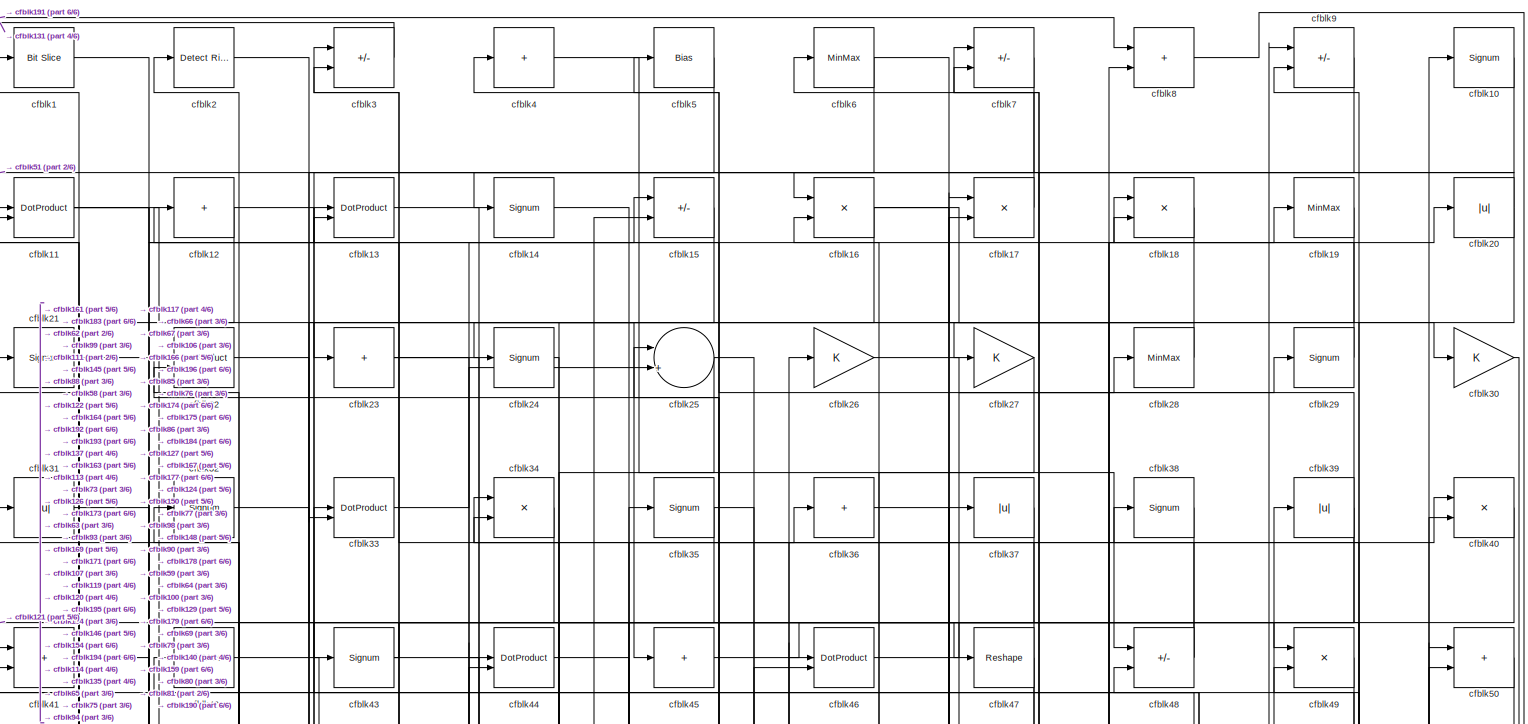
[diagram: root canvas - part 1/6, full width, top band]
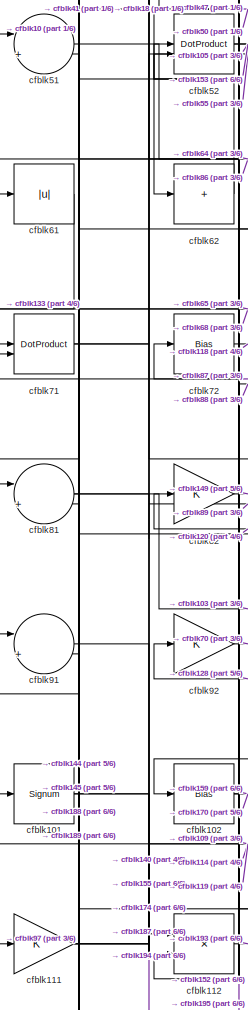
[diagram: root canvas - part 2/6, middle left region]
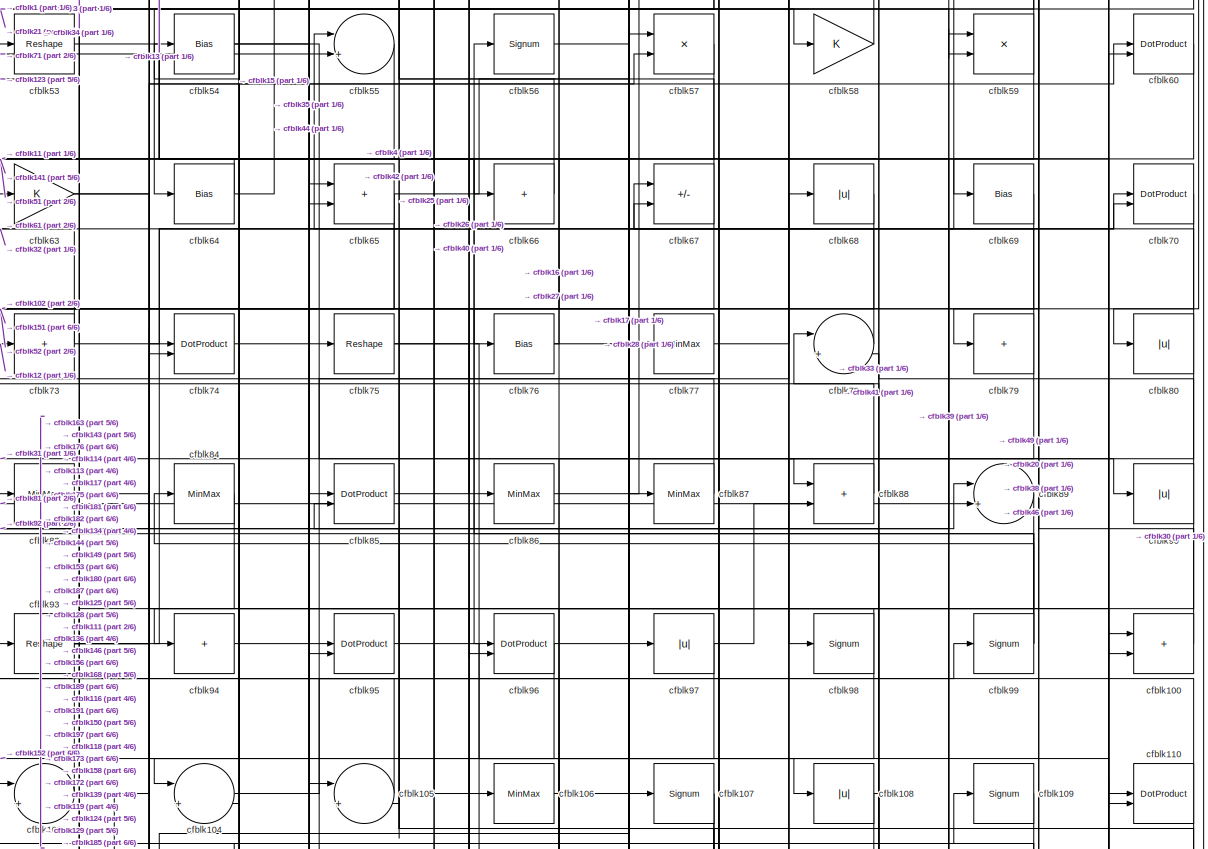
[diagram: root canvas - part 3/6, full width, middle band]
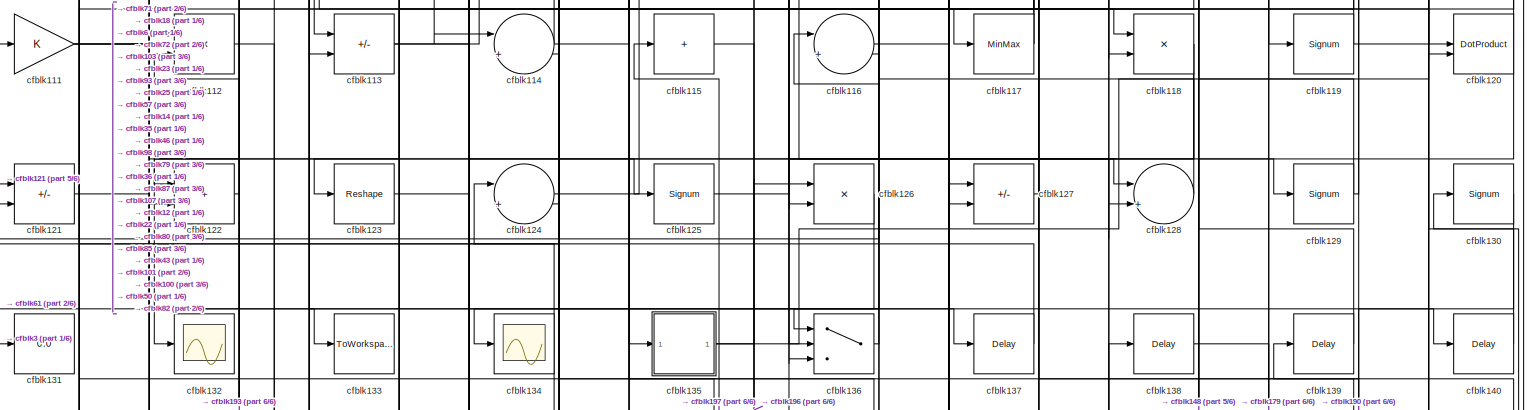
[diagram: root canvas - part 4/6, full width, middle band]
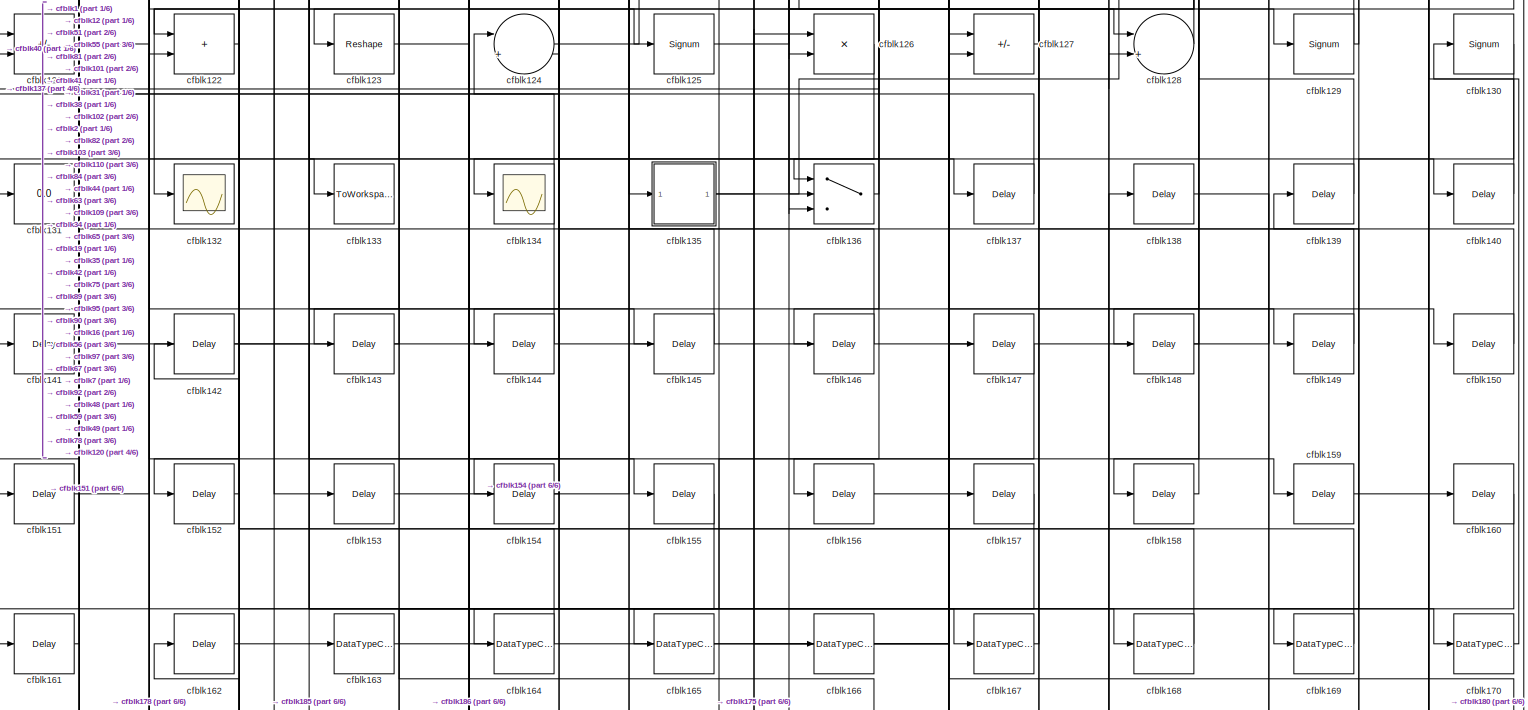
[diagram: root canvas - part 5/6, full width, bottom band]
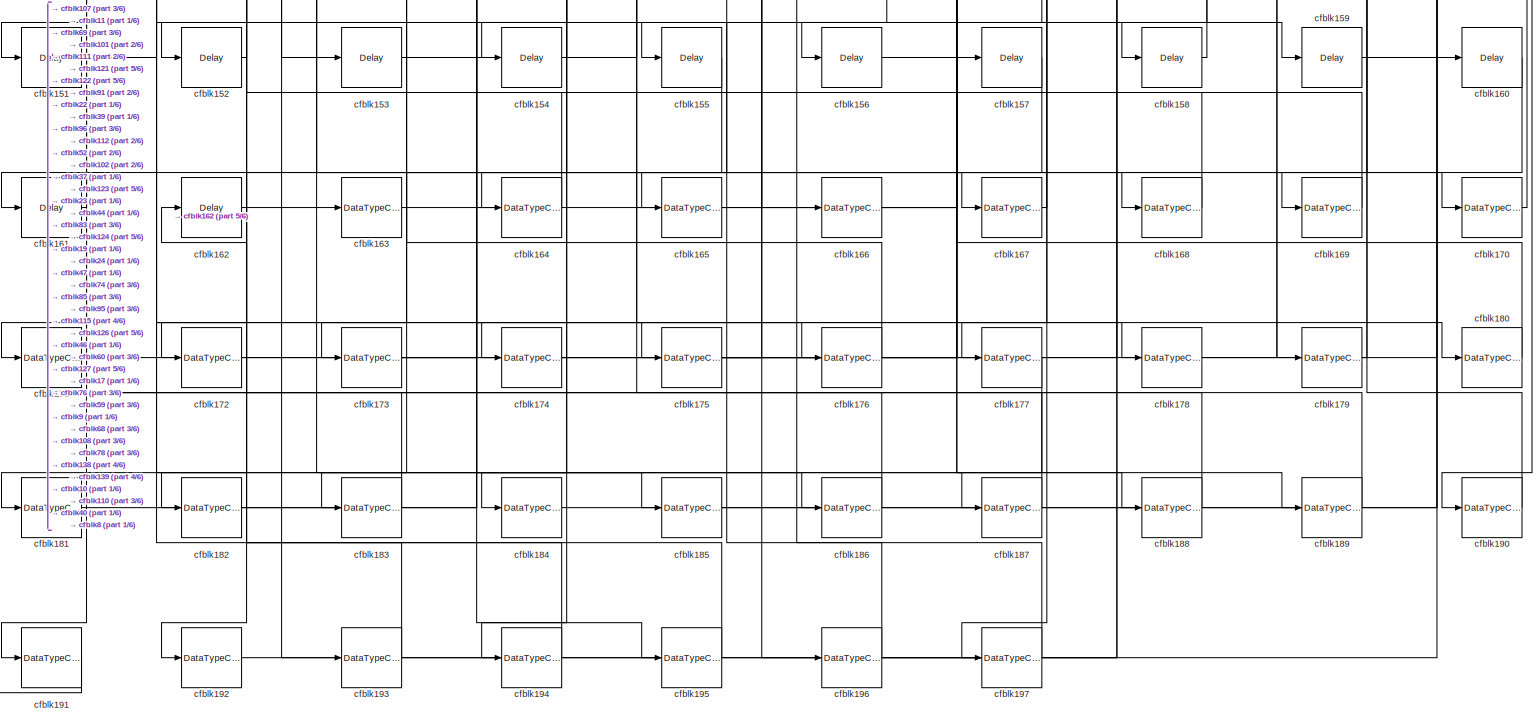
[diagram: root canvas - part 6/6, full width, bottom band]
MODEL slx_c503c598198f
KIND model
CONFIG AbsTol = auto
CONFIG EnableMultiTasking = off
CONFIG FixedStep = auto
CONFIG MaxStep = auto
CONFIG MinStep = auto
CONFIG RelTol = 1e-3
CONFIG SampleTimeConstraint = Unconstrained
CONFIG SolverName = VariableStepAuto
CONFIG StartTime = 0.0
CONFIG StopTime = 10.0
BLOCK [Reference] cfblk1  REF=hdlsllib/Logic and Bit
Operations/Bit Slice
  SourceBlock = hdlsllib/Logic and Bit\nOperations/Bit Slice
  SourceType = Bit Slice
BLOCK [Signum] cfblk10
BLOCK [Sum] cfblk100
  IconShape = rectangular
BLOCK [Signum] cfblk101
BLOCK [Bias] cfblk102
  Bias = 0.0
  SaturateOnIntegerOverflow = off
BLOCK [Sum] cfblk103
  Inputs = |++
BLOCK [Sum] cfblk104
  Inputs = |++
BLOCK [Sum] cfblk105
  Inputs = |++
BLOCK [MinMax] cfblk106
BLOCK [Signum] cfblk107
BLOCK [Abs] cfblk108
  SaturateOnIntegerOverflow = off
BLOCK [Signum] cfblk109
BLOCK [DotProduct] cfblk11
  OutDataTypeStr = Inherit: Inherit via internal rule
BLOCK [DotProduct] cfblk110
  OutDataTypeStr = Inherit: Inherit via internal rule
BLOCK [Gain] cfblk111
BLOCK [Product] cfblk112
  Inputs = */
  RndMeth = Zero
  SaturateOnIntegerOverflow = on
BLOCK [Sum] cfblk113
  IconShape = rectangular
  Inputs = +-
BLOCK [Sum] cfblk114
  Inputs = |++
BLOCK [Sum] cfblk115
  IconShape = rectangular
  Inputs = +
BLOCK [Sum] cfblk116
  Inputs = |++
BLOCK [MinMax] cfblk117
BLOCK [Product] cfblk118
  Inputs = */
  RndMeth = Zero
  SaturateOnIntegerOverflow = on
BLOCK [Signum] cfblk119
BLOCK [Sum] cfblk12
  IconShape = rectangular
  Inputs = +
BLOCK [DotProduct] cfblk120
  OutDataTypeStr = Inherit: Inherit via internal rule
BLOCK [Sum] cfblk121
  IconShape = rectangular
  Inputs = +-
BLOCK [Sum] cfblk122
  IconShape = rectangular
BLOCK [Reshape] cfblk123
BLOCK [Sum] cfblk124
  Inputs = |++
BLOCK [Signum] cfblk125
BLOCK [Product] cfblk126
  Inputs = */
  RndMeth = Zero
  SaturateOnIntegerOverflow = on
BLOCK [Sum] cfblk127
  IconShape = rectangular
  Inputs = +-
BLOCK [Sum] cfblk128
  Inputs = |++
BLOCK [Signum] cfblk129
BLOCK [DotProduct] cfblk13
  OutDataTypeStr = Inherit: Inherit via internal rule
BLOCK [Signum] cfblk130
BLOCK [Display] cfblk131
  Decimation = 1
BLOCK [Scope] cfblk132
  Floating = off
  NumInputPorts = 1
  ScopeSpecificationString = Simulink.scopes.TimeScopeBlockCfg('CurrentConfiguration', extmgr.ConfigurationSet(extmgr.Configuration('Core','General UI',true),extmgr.Configuration('Core','Source UI',true),extmgr.Configuration('Sources','WiredSimulink',true,'DataLoggingVariableName','ScopeData2','DataLoggingSaveFormat','Array','DataLoggingLimitDataPoints',true,'DataLoggingDecimation','1'),extmgr.Configuration('Visuals','Time Do...<+868ch>
BLOCK [ToWorkspace] cfblk133
  MaxDataPoints = inf
  SampleTime = -1
  SaveFormat = Timeseries
  VariableName = simout
BLOCK [Scope] cfblk134
  Floating = off
  NumInputPorts = 1
  ScopeSpecificationString = Simulink.scopes.TimeScopeBlockCfg('CurrentConfiguration', extmgr.ConfigurationSet(extmgr.Configuration('Core','General UI',true),extmgr.Configuration('Core','Source UI',true),extmgr.Configuration('Sources','WiredSimulink',true,'DataLoggingVariableName','ScopeData2','DataLoggingSaveFormat','Array','DataLoggingLimitDataPoints',true,'DataLoggingDecimation','1'),extmgr.Configuration('Visuals','Time Do...<+868ch>
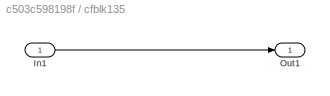
BLOCK [SubSystem] cfblk135
  LibrarySourceBlock = hdlsllib/Ports &\nSubsystems/Subsystem
BLOCK [Inport] cfblk135/In1
BLOCK [Outport] cfblk135/Out1
BLOCK [Switch] cfblk136
  InputSameDT = off
  SaturateOnIntegerOverflow = off
BLOCK [Delay] cfblk137
  InputPortMap = u0
  SampleTime = 1
BLOCK [Delay] cfblk138
  InputPortMap = u0
  SampleTime = 1
BLOCK [Delay] cfblk139
  InputPortMap = u0
  SampleTime = 1
BLOCK [Signum] cfblk14
BLOCK [Delay] cfblk140
  InputPortMap = u0
  SampleTime = 1
BLOCK [Delay] cfblk141
  InputPortMap = u0
  SampleTime = 1
BLOCK [Delay] cfblk142
  InputPortMap = u0
  SampleTime = 1
BLOCK [Delay] cfblk143
  InputPortMap = u0
  SampleTime = 1
BLOCK [Delay] cfblk144
  InputPortMap = u0
  SampleTime = 1
BLOCK [Delay] cfblk145
  InputPortMap = u0
  SampleTime = 1
BLOCK [Delay] cfblk146
  InputPortMap = u0
  SampleTime = 1
BLOCK [Delay] cfblk147
  InputPortMap = u0
  SampleTime = 1
BLOCK [Delay] cfblk148
  InputPortMap = u0
  SampleTime = 1
BLOCK [Delay] cfblk149
  InputPortMap = u0
  SampleTime = 1
BLOCK [Sum] cfblk15
  IconShape = rectangular
  Inputs = +-
BLOCK [Delay] cfblk150
  InputPortMap = u0
  SampleTime = 1
BLOCK [Delay] cfblk151
  InputPortMap = u0
  SampleTime = 1
BLOCK [Delay] cfblk152
  InputPortMap = u0
  SampleTime = 1
BLOCK [Delay] cfblk153
  InputPortMap = u0
  SampleTime = 1
BLOCK [Delay] cfblk154
  InputPortMap = u0
  SampleTime = 1
BLOCK [Delay] cfblk155
  InputPortMap = u0
  SampleTime = 1
BLOCK [Delay] cfblk156
  InputPortMap = u0
  SampleTime = 1
BLOCK [Delay] cfblk157
  InputPortMap = u0
  SampleTime = 1
BLOCK [Delay] cfblk158
  InputPortMap = u0
  SampleTime = 1
BLOCK [Delay] cfblk159
  InputPortMap = u0
  SampleTime = 1
BLOCK [Product] cfblk16
  Inputs = */
  RndMeth = Zero
  SaturateOnIntegerOverflow = on
BLOCK [Delay] cfblk160
  InputPortMap = u0
  SampleTime = 1
BLOCK [Delay] cfblk161
  InputPortMap = u0
  SampleTime = 1
BLOCK [Delay] cfblk162
  InputPortMap = u0
  SampleTime = 1
BLOCK [DataTypeConversion] cfblk163
  OutDataTypeStr = uint8
  RndMeth = Floor
  SaturateOnIntegerOverflow = off
BLOCK [DataTypeConversion] cfblk164
  OutDataTypeStr = uint8
  RndMeth = Floor
  SaturateOnIntegerOverflow = off
BLOCK [DataTypeConversion] cfblk165
  OutDataTypeStr = uint8
  RndMeth = Floor
  SaturateOnIntegerOverflow = off
BLOCK [DataTypeConversion] cfblk166
  OutDataTypeStr = uint8
  RndMeth = Floor
  SaturateOnIntegerOverflow = off
BLOCK [DataTypeConversion] cfblk167
  OutDataTypeStr = uint8
  RndMeth = Floor
  SaturateOnIntegerOverflow = off
BLOCK [DataTypeConversion] cfblk168
  OutDataTypeStr = uint8
  RndMeth = Floor
  SaturateOnIntegerOverflow = off
BLOCK [DataTypeConversion] cfblk169
  OutDataTypeStr = uint8
  RndMeth = Floor
  SaturateOnIntegerOverflow = off
BLOCK [Product] cfblk17
  Inputs = */
  RndMeth = Zero
  SaturateOnIntegerOverflow = on
BLOCK [DataTypeConversion] cfblk170
  OutDataTypeStr = uint8
  RndMeth = Floor
  SaturateOnIntegerOverflow = off
BLOCK [DataTypeConversion] cfblk171
  OutDataTypeStr = uint8
  RndMeth = Floor
  SaturateOnIntegerOverflow = off
BLOCK [DataTypeConversion] cfblk172
  OutDataTypeStr = uint8
  RndMeth = Floor
  SaturateOnIntegerOverflow = off
BLOCK [DataTypeConversion] cfblk173
  RndMeth = Floor
  SaturateOnIntegerOverflow = off
BLOCK [DataTypeConversion] cfblk174
  OutDataTypeStr = uint8
  RndMeth = Floor
  SaturateOnIntegerOverflow = off
BLOCK [DataTypeConversion] cfblk175
  RndMeth = Floor
  SaturateOnIntegerOverflow = off
BLOCK [DataTypeConversion] cfblk176
  OutDataTypeStr = uint8
  RndMeth = Floor
  SaturateOnIntegerOverflow = off
BLOCK [DataTypeConversion] cfblk177
  OutDataTypeStr = uint8
  RndMeth = Floor
  SaturateOnIntegerOverflow = off
BLOCK [DataTypeConversion] cfblk178
  OutDataTypeStr = uint8
  RndMeth = Floor
  SaturateOnIntegerOverflow = off
BLOCK [DataTypeConversion] cfblk179
  OutDataTypeStr = uint8
  RndMeth = Floor
  SaturateOnIntegerOverflow = off
BLOCK [Product] cfblk18
  Inputs = */
  RndMeth = Zero
  SaturateOnIntegerOverflow = on
BLOCK [DataTypeConversion] cfblk180
  OutDataTypeStr = uint8
  RndMeth = Floor
  SaturateOnIntegerOverflow = off
BLOCK [DataTypeConversion] cfblk181
  OutDataTypeStr = uint8
  RndMeth = Floor
  SaturateOnIntegerOverflow = off
BLOCK [DataTypeConversion] cfblk182
  OutDataTypeStr = uint8
  RndMeth = Floor
  SaturateOnIntegerOverflow = off
BLOCK [DataTypeConversion] cfblk183
  OutDataTypeStr = uint8
  RndMeth = Floor
  SaturateOnIntegerOverflow = off
BLOCK [DataTypeConversion] cfblk184
  OutDataTypeStr = uint8
  RndMeth = Floor
  SaturateOnIntegerOverflow = off
BLOCK [DataTypeConversion] cfblk185
  OutDataTypeStr = uint8
  RndMeth = Floor
  SaturateOnIntegerOverflow = off
BLOCK [DataTypeConversion] cfblk186
  OutDataTypeStr = uint8
  RndMeth = Floor
  SaturateOnIntegerOverflow = off
BLOCK [DataTypeConversion] cfblk187
  OutDataTypeStr = uint8
  RndMeth = Floor
  SaturateOnIntegerOverflow = off
BLOCK [DataTypeConversion] cfblk188
  OutDataTypeStr = uint8
  RndMeth = Floor
  SaturateOnIntegerOverflow = off
BLOCK [DataTypeConversion] cfblk189
  OutDataTypeStr = uint8
  RndMeth = Floor
  SaturateOnIntegerOverflow = off
BLOCK [MinMax] cfblk19
BLOCK [DataTypeConversion] cfblk190
  OutDataTypeStr = uint8
  RndMeth = Floor
  SaturateOnIntegerOverflow = off
BLOCK [DataTypeConversion] cfblk191
  OutDataTypeStr = uint8
  RndMeth = Floor
  SaturateOnIntegerOverflow = off
BLOCK [DataTypeConversion] cfblk192
  OutDataTypeStr = uint8
  RndMeth = Floor
  SaturateOnIntegerOverflow = off
BLOCK [DataTypeConversion] cfblk193
  RndMeth = Floor
  SaturateOnIntegerOverflow = off
BLOCK [DataTypeConversion] cfblk194
  OutDataTypeStr = uint8
  RndMeth = Floor
  SaturateOnIntegerOverflow = off
BLOCK [DataTypeConversion] cfblk195
  OutDataTypeStr = uint8
  RndMeth = Floor
  SaturateOnIntegerOverflow = off
BLOCK [DataTypeConversion] cfblk196
  RndMeth = Floor
  SaturateOnIntegerOverflow = off
BLOCK [DataTypeConversion] cfblk197
  OutDataTypeStr = uint8
  RndMeth = Floor
  SaturateOnIntegerOverflow = off
BLOCK [Reference] cfblk2  REF=hdlsllib/Logic and Bit
Operations/Detect Rise
Positive
  SourceBlock = hdlsllib/Logic and Bit\nOperations/Detect Rise\nPositive
  SourceType = Detect Rise Positive
BLOCK [Abs] cfblk20
  SaturateOnIntegerOverflow = off
BLOCK [Signum] cfblk21
BLOCK [DotProduct] cfblk22
  OutDataTypeStr = Inherit: Inherit via internal rule
BLOCK [Sum] cfblk23
  IconShape = rectangular
  Inputs = +
BLOCK [Signum] cfblk24
BLOCK [Sum] cfblk25
  Inputs = |++
BLOCK [Gain] cfblk26
BLOCK [Gain] cfblk27
BLOCK [MinMax] cfblk28
BLOCK [Signum] cfblk29
BLOCK [Sum] cfblk3
  IconShape = rectangular
  Inputs = +-
BLOCK [Gain] cfblk30
BLOCK [Abs] cfblk31
  SaturateOnIntegerOverflow = off
BLOCK [Signum] cfblk32
BLOCK [DotProduct] cfblk33
  OutDataTypeStr = Inherit: Inherit via internal rule
BLOCK [Product] cfblk34
  Inputs = */
  RndMeth = Zero
  SaturateOnIntegerOverflow = on
BLOCK [Signum] cfblk35
BLOCK [Sum] cfblk36
  IconShape = rectangular
  Inputs = +
BLOCK [Abs] cfblk37
  SaturateOnIntegerOverflow = off
BLOCK [Signum] cfblk38
BLOCK [Abs] cfblk39
  SaturateOnIntegerOverflow = off
BLOCK [Sum] cfblk4
  IconShape = rectangular
  Inputs = +
BLOCK [Product] cfblk40
  Inputs = */
  RndMeth = Zero
  SaturateOnIntegerOverflow = on
BLOCK [Sum] cfblk41
  IconShape = rectangular
BLOCK [MinMax] cfblk42
BLOCK [Signum] cfblk43
BLOCK [DotProduct] cfblk44
  OutDataTypeStr = Inherit: Inherit via internal rule
BLOCK [Sum] cfblk45
  IconShape = rectangular
  Inputs = +
BLOCK [DotProduct] cfblk46
  OutDataTypeStr = Inherit: Inherit via internal rule
BLOCK [Reshape] cfblk47
BLOCK [Sum] cfblk48
  IconShape = rectangular
  Inputs = +-
BLOCK [Product] cfblk49
  Inputs = */
  RndMeth = Zero
  SaturateOnIntegerOverflow = on
BLOCK [Bias] cfblk5
  Bias = 0.0
  SaturateOnIntegerOverflow = off
BLOCK [Sum] cfblk50
  IconShape = rectangular
BLOCK [Sum] cfblk51
  Inputs = |++
BLOCK [DotProduct] cfblk52
  OutDataTypeStr = Inherit: Inherit via internal rule
BLOCK [Reshape] cfblk53
BLOCK [Bias] cfblk54
  Bias = 0.0
  SaturateOnIntegerOverflow = off
BLOCK [Sum] cfblk55
  Inputs = |++
BLOCK [Signum] cfblk56
BLOCK [Product] cfblk57
  Inputs = */
  RndMeth = Zero
  SaturateOnIntegerOverflow = on
BLOCK [Gain] cfblk58
BLOCK [Product] cfblk59
  Inputs = */
  RndMeth = Zero
  SaturateOnIntegerOverflow = on
BLOCK [MinMax] cfblk6
BLOCK [DotProduct] cfblk60
  OutDataTypeStr = Inherit: Inherit via internal rule
BLOCK [Abs] cfblk61
  SaturateOnIntegerOverflow = off
BLOCK [Sum] cfblk62
  IconShape = rectangular
  Inputs = +
BLOCK [Gain] cfblk63
BLOCK [Bias] cfblk64
  Bias = 0.0
  SaturateOnIntegerOverflow = off
BLOCK [Sum] cfblk65
  IconShape = rectangular
BLOCK [Sum] cfblk66
  IconShape = rectangular
  Inputs = +
BLOCK [Sum] cfblk67
  IconShape = rectangular
  Inputs = +-
BLOCK [Abs] cfblk68
  SaturateOnIntegerOverflow = off
BLOCK [Bias] cfblk69
  Bias = 0.0
  SaturateOnIntegerOverflow = off
BLOCK [Sum] cfblk7
  IconShape = rectangular
  Inputs = +-
BLOCK [DotProduct] cfblk70
  OutDataTypeStr = Inherit: Inherit via internal rule
BLOCK [DotProduct] cfblk71
  OutDataTypeStr = Inherit: Inherit via internal rule
BLOCK [Bias] cfblk72
  Bias = 0.0
  SaturateOnIntegerOverflow = off
BLOCK [Sum] cfblk73
  IconShape = rectangular
  Inputs = +
BLOCK [DotProduct] cfblk74
  OutDataTypeStr = Inherit: Inherit via internal rule
BLOCK [Reshape] cfblk75
BLOCK [Bias] cfblk76
  Bias = 0.0
  SaturateOnIntegerOverflow = off
BLOCK [MinMax] cfblk77
BLOCK [Sum] cfblk78
  Inputs = |++
BLOCK [Sum] cfblk79
  IconShape = rectangular
  Inputs = +
BLOCK [Sum] cfblk8
  IconShape = rectangular
BLOCK [Abs] cfblk80
  SaturateOnIntegerOverflow = off
BLOCK [Sum] cfblk81
  Inputs = |++
BLOCK [Gain] cfblk82
BLOCK [MinMax] cfblk83
BLOCK [MinMax] cfblk84
BLOCK [DotProduct] cfblk85
  OutDataTypeStr = Inherit: Inherit via internal rule
BLOCK [MinMax] cfblk86
BLOCK [MinMax] cfblk87
BLOCK [Sum] cfblk88
  IconShape = rectangular
BLOCK [Sum] cfblk89
  Inputs = |++
BLOCK [Sum] cfblk9
  IconShape = rectangular
  Inputs = +-
BLOCK [Abs] cfblk90
  SaturateOnIntegerOverflow = off
BLOCK [Sum] cfblk91
  Inputs = |++
BLOCK [Gain] cfblk92
BLOCK [Reshape] cfblk93
BLOCK [Sum] cfblk94
  IconShape = rectangular
  Inputs = +
BLOCK [DotProduct] cfblk95
  OutDataTypeStr = Inherit: Inherit via internal rule
BLOCK [DotProduct] cfblk96
  OutDataTypeStr = Inherit: Inherit via internal rule
BLOCK [Abs] cfblk97
  SaturateOnIntegerOverflow = off
BLOCK [Signum] cfblk98
BLOCK [Signum] cfblk99
LINE cfblk100:1 -> cfblk38:1
NET cfblk101:1 -> cfblk128:2, cfblk174:1
NET cfblk102:1 -> cfblk159:1, cfblk170:1
NET cfblk103:1 -> cfblk114:1, cfblk57:2, cfblk93:1
LINE cfblk104:1 -> cfblk99:1
LINE cfblk105:1 -> cfblk54:1
LINE cfblk106:1 -> cfblk70:2
NET cfblk107:1 -> cfblk116:2, cfblk191:1
NET cfblk108:1 -> cfblk158:1, cfblk172:1
LINE cfblk109:1 -> cfblk124:2
LINE cfblk10:1 -> cfblk51:1
NET cfblk110:1 -> cfblk123:1, cfblk53:1
NET cfblk111:1 -> cfblk109:1, cfblk155:1, cfblk18:2
LINE cfblk112:1 -> cfblk193:1
NET cfblk113:1 -> cfblk25:2, cfblk57:1
NET cfblk114:1 -> cfblk36:1, cfblk72:1
LINE cfblk115:1 -> cfblk196:1
LINE cfblk116:1 -> cfblk87:1
NET cfblk117:1 -> cfblk12:1, cfblk22:1
NET cfblk118:1 -> cfblk132:1, cfblk136:3
NET cfblk119:1 -> cfblk100:1, cfblk101:1
NET cfblk11:1 -> cfblk13:2, cfblk45:1, cfblk66:1
NET cfblk120:1 -> cfblk148:1, cfblk82:1
LINE cfblk121:1 -> cfblk178:1
LINE cfblk122:1 -> cfblk31:1
LINE cfblk123:1 -> cfblk186:1
LINE cfblk124:1 -> cfblk19:1
LINE cfblk125:1 -> cfblk89:1
LINE cfblk126:1 -> cfblk164:1
LINE cfblk127:1 -> cfblk7:1
LINE cfblk128:1 -> cfblk92:1
NET cfblk129:1 -> cfblk49:2, cfblk78:1
NET cfblk12:1 -> cfblk161:1, cfblk73:1
LINE cfblk130:1 -> cfblk169:1
LINE cfblk135/In1:1 -> cfblk135/Out1:1
NET cfblk135:1 -> cfblk46:2, cfblk50:2
LINE cfblk136:1 -> cfblk116:1
LINE cfblk137:1 -> cfblk121:1
LINE cfblk138:1 -> cfblk179:1
LINE cfblk139:1 -> cfblk85:2
LINE cfblk13:1 -> cfblk107:1
LINE cfblk140:1 -> cfblk50:1
LINE cfblk141:1 -> cfblk59:1
LINE cfblk142:1 -> cfblk167:1
LINE cfblk143:1 -> cfblk103:2
LINE cfblk144:1 -> cfblk81:2
LINE cfblk145:1 -> cfblk51:2
LINE cfblk146:1 -> cfblk34:2
LINE cfblk147:1 -> cfblk165:1
LINE cfblk148:1 -> cfblk48:2
LINE cfblk149:1 -> cfblk65:1
LINE cfblk14:1 -> cfblk135:1
LINE cfblk150:1 -> cfblk67:2
LINE cfblk151:1 -> cfblk122:2
LINE cfblk152:1 -> cfblk52:2
LINE cfblk153:1 -> cfblk95:1
LINE cfblk154:1 -> cfblk124:1
LINE cfblk155:1 -> cfblk182:1
LINE cfblk156:1 -> cfblk188:1
LINE cfblk157:1 -> cfblk171:1
LINE cfblk158:1 -> cfblk78:2
LINE cfblk159:1 -> cfblk40:2
LINE cfblk15:1 -> cfblk24:1
LINE cfblk160:1 -> cfblk183:1
LINE cfblk161:1 -> cfblk1:1
LINE cfblk162:1 -> cfblk185:1
LINE cfblk163:1 -> cfblk97:1
LINE cfblk164:1 -> cfblk2:1
LINE cfblk165:1 -> cfblk127:2
LINE cfblk166:1 -> cfblk147:1
LINE cfblk167:1 -> cfblk7:2
LINE cfblk168:1 -> cfblk142:1
LINE cfblk169:1 -> cfblk44:1
NET cfblk16:1 -> cfblk150:1, cfblk23:1, cfblk98:1
LINE cfblk170:1 -> cfblk130:1
LINE cfblk171:1 -> cfblk44:2
LINE cfblk172:1 -> cfblk157:1
NET cfblk173:1 -> cfblk176:1, cfblk68:1
LINE cfblk174:1 -> cfblk37:1
NET cfblk175:1 -> cfblk126:1, cfblk17:1, cfblk60:2
LINE cfblk176:1 -> cfblk83:1
LINE cfblk177:1 -> cfblk181:1
LINE cfblk178:1 -> cfblk9:1
LINE cfblk179:1 -> cfblk9:2
LINE cfblk17:1 -> cfblk6:1
LINE cfblk180:1 -> cfblk127:1
LINE cfblk181:1 -> cfblk74:1
LINE cfblk182:1 -> cfblk74:2
LINE cfblk183:1 -> cfblk11:2
LINE cfblk184:1 -> cfblk160:1
LINE cfblk185:1 -> cfblk110:1
LINE cfblk186:1 -> cfblk162:1
LINE cfblk187:1 -> cfblk85:1
LINE cfblk188:1 -> cfblk91:1
LINE cfblk189:1 -> cfblk91:2
LINE cfblk18:1 -> cfblk113:2
LINE cfblk190:1 -> cfblk139:1
LINE cfblk191:1 -> cfblk8:1
LINE cfblk192:1 -> cfblk8:2
NET cfblk193:1 -> cfblk138:1, cfblk22:2
LINE cfblk194:1 -> cfblk112:1
LINE cfblk195:1 -> cfblk112:2
NET cfblk196:1 -> cfblk10:1, cfblk46:1
LINE cfblk197:1 -> cfblk115:1
LINE cfblk19:1 -> cfblk154:1
LINE cfblk1:1 -> cfblk59:2
NET cfblk20:1 -> cfblk16:1, cfblk69:1
LINE cfblk21:1 -> cfblk58:1
LINE cfblk22:1 -> cfblk137:1
NET cfblk23:1 -> cfblk120:1, cfblk195:1
LINE cfblk24:1 -> cfblk194:1
NET cfblk25:1 -> cfblk104:1, cfblk106:1
LINE cfblk26:1 -> cfblk29:1
LINE cfblk27:1 -> cfblk76:1
LINE cfblk28:1 -> cfblk27:1
LINE cfblk29:1 -> cfblk18:1
LINE cfblk2:1 -> cfblk163:1
LINE cfblk30:1 -> cfblk80:1
LINE cfblk31:1 -> cfblk88:1
LINE cfblk32:1 -> cfblk49:1
LINE cfblk33:1 -> cfblk15:1
LINE cfblk34:1 -> cfblk63:1
NET cfblk35:1 -> cfblk114:2, cfblk166:1
LINE cfblk36:1 -> cfblk120:2
LINE cfblk37:1 -> cfblk173:1
LINE cfblk38:1 -> cfblk122:1
NET cfblk39:1 -> cfblk192:1, cfblk5:1, cfblk65:2
LINE cfblk3:1 -> cfblk131:1
LINE cfblk40:1 -> cfblk121:2
LINE cfblk41:1 -> cfblk145:1
LINE cfblk42:1 -> cfblk126:2
NET cfblk43:1 -> cfblk119:1, cfblk3:2
LINE cfblk44:1 -> cfblk75:1
LINE cfblk45:1 -> cfblk47:1
LINE cfblk46:1 -> cfblk79:1
NET cfblk47:1 -> cfblk13:1, cfblk184:1, cfblk62:1
NET cfblk48:1 -> cfblk34:1, cfblk43:1
LINE cfblk49:1 -> cfblk64:1
LINE cfblk4:1 -> cfblk48:1
LINE cfblk50:1 -> cfblk81:1
LINE cfblk51:1 -> cfblk86:1
NET cfblk52:1 -> cfblk105:1, cfblk153:1
LINE cfblk53:1 -> cfblk96:1
NET cfblk54:1 -> cfblk90:1, cfblk96:2
LINE cfblk55:1 -> cfblk141:1
LINE cfblk56:1 -> cfblk168:1
LINE cfblk57:1 -> cfblk134:1
LINE cfblk58:1 -> cfblk33:1
NET cfblk59:1 -> cfblk197:1, cfblk25:1
LINE cfblk5:1 -> cfblk33:2
LINE cfblk60:1 -> cfblk156:1
LINE cfblk61:1 -> cfblk133:1
LINE cfblk62:1 -> cfblk41:1
NET cfblk63:1 -> cfblk100:2, cfblk125:1
NET cfblk64:1 -> cfblk15:2, cfblk61:1
NET cfblk65:1 -> cfblk17:2, cfblk71:2, cfblk95:2
LINE cfblk66:1 -> cfblk42:1
NET cfblk67:1 -> cfblk104:2, cfblk4:1
LINE cfblk68:1 -> cfblk102:1
LINE cfblk69:1 -> cfblk151:1
NET cfblk6:1 -> cfblk113:1, cfblk30:1
LINE cfblk70:1 -> cfblk105:2
NET cfblk71:1 -> cfblk140:1, cfblk55:2
LINE cfblk72:1 -> cfblk118:1
NET cfblk73:1 -> cfblk11:1, cfblk26:1
LINE cfblk74:1 -> cfblk180:1
NET cfblk75:1 -> cfblk108:1, cfblk128:1
NET cfblk76:1 -> cfblk16:2, cfblk189:1
LINE cfblk77:1 -> cfblk20:1
LINE cfblk78:1 -> cfblk67:1
NET cfblk79:1 -> cfblk136:1, cfblk32:1
LINE cfblk7:1 -> cfblk14:1
NET cfblk80:1 -> cfblk118:2, cfblk55:1
NET cfblk81:1 -> cfblk103:1, cfblk89:2
LINE cfblk82:1 -> cfblk149:1
LINE cfblk83:1 -> cfblk175:1
LINE cfblk84:1 -> cfblk143:1
LINE cfblk85:1 -> cfblk40:1
LINE cfblk86:1 -> cfblk28:1
LINE cfblk87:1 -> cfblk71:1
LINE cfblk88:1 -> cfblk52:1
LINE cfblk89:1 -> cfblk144:1
LINE cfblk8:1 -> cfblk190:1
NET cfblk90:1 -> cfblk146:1, cfblk41:2
LINE cfblk91:1 -> cfblk187:1
LINE cfblk92:1 -> cfblk70:1
NET cfblk93:1 -> cfblk110:2, cfblk117:1, cfblk39:1, cfblk3:1, cfblk60:1
LINE cfblk94:1 -> cfblk35:1
LINE cfblk95:1 -> cfblk129:1
NET cfblk96:1 -> cfblk152:1, cfblk77:1
NET cfblk97:1 -> cfblk111:1, cfblk88:2
NET cfblk98:1 -> cfblk136:2, cfblk94:1
NET cfblk99:1 -> cfblk21:1, cfblk56:1, cfblk84:1
LINE cfblk9:1 -> cfblk177:1
note: NET lines group one-source signal fan-out (src -> all destinations, sorted); 1:1 wires keep LINE
